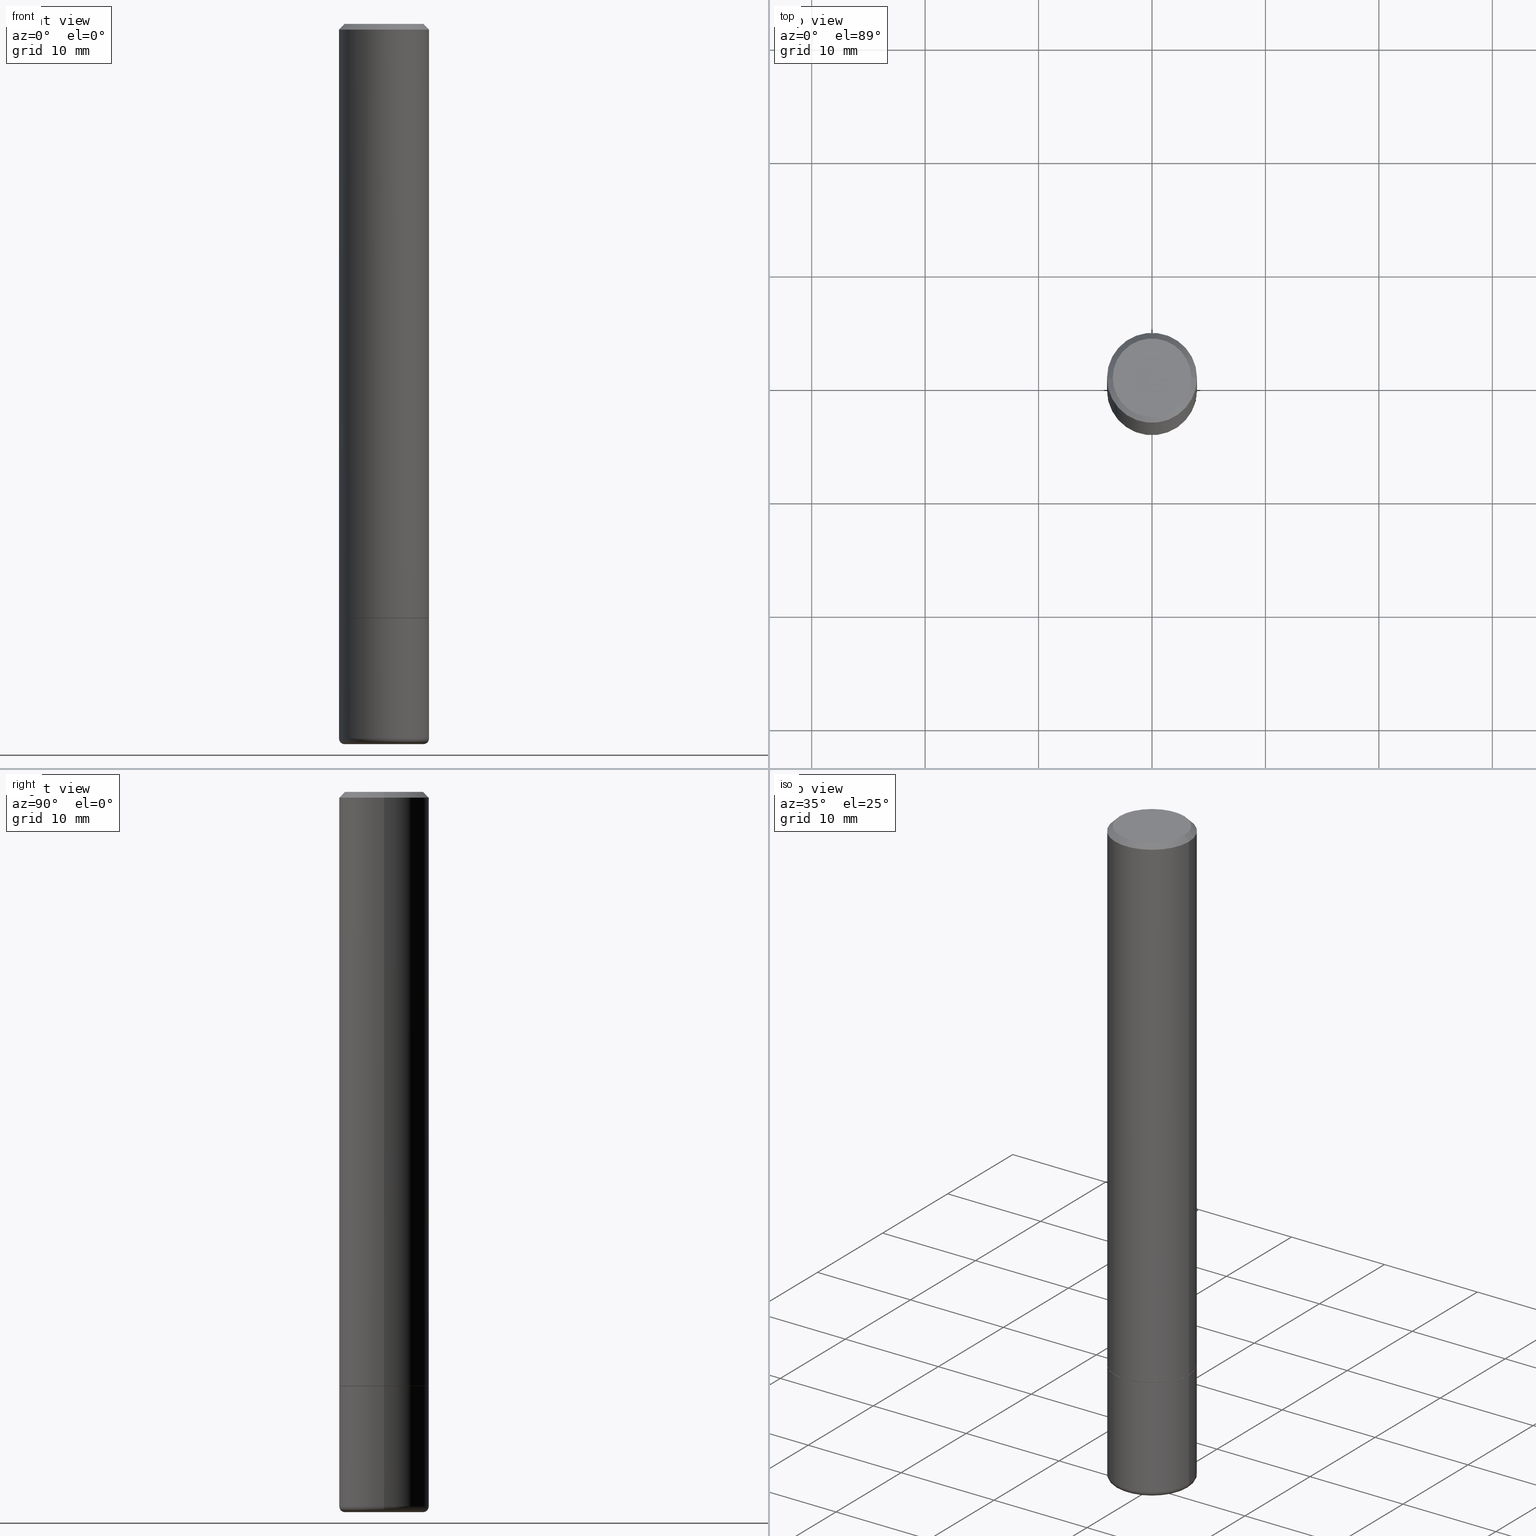
[diagram: canonical four-view strip — front | top / right | iso, engineering-drawing reading convention]
A machine part, canonical four-view strip (front | top / right | iso — engineering-drawing reading convention). The complete STEP part file that produces these views, byte-faithful:
ISO-10303-21;
HEADER;
FILE_DESCRIPTION (( 'STEP AP203' ),
    '1' );
FILE_NAME ('33456.STEP',
    '2022-11-02T20:12:32',
    ( '' ),
    ( '' ),
    'SwSTEP 2.0',
    'SolidWorks 2022',
    '' );
FILE_SCHEMA (( 'CONFIG_CONTROL_DESIGN' ));
ENDSEC;

DATA;
#1 = CC_DESIGN_APPROVAL ( #394, ( #26 ) ) ;
#2 = CARTESIAN_POINT ( 'NONE',  ( 6.113316349644044208E-29, -8.728195550579831030E-15, -2.499854561293974875 ) ) ;
#3 = PERSON ( 'UNSPECIFIED', 'UNSPECIFIED', 'UNSPECIFIED', ('UNSPECIFIED'), ('UNSPECIFIED'), ('UNSPECIFIED') ) ;
#4 = DIRECTION ( 'NONE',  ( -1.000000000000000000, 6.982962677686265922E-15, -4.876176775795935793E-29 ) ) ;
#5 = ORIENTED_EDGE ( 'NONE', *, *, #136, .F. ) ;
#6 = AXIS2_PLACEMENT_3D ( 'NONE', #470, #17, #397 ) ;
#7 = AXIS2_PLACEMENT_3D ( 'NONE', #485, #152, #452 ) ;
#8 = CARTESIAN_POINT ( 'NONE',  ( -0.1360754692900327800, -7.778493423706921372E-15, -2.500000000000000000 ) ) ;
#9 = CARTESIAN_POINT ( 'NONE',  ( 6.113316349644044208E-29, -8.728195550579831030E-15, -2.499854561293974875 ) ) ;
#10 = ORIENTED_EDGE ( 'NONE', *, *, #289, .T. ) ;
#11 = VERTEX_POINT ( 'NONE', #47 ) ;
#12 = CLOSED_SHELL ( 'NONE', ( #269, #220, #478, #80, #106, #218, #175, #366 ) ) ;
#13 = AXIS2_PLACEMENT_3D ( 'NONE', #182, #230, #343 ) ;
#14 = ORIENTED_EDGE ( 'NONE', *, *, #34, .T. ) ;
#15 = DIRECTION ( 'NONE',  ( -2.445468806185136597E-29, 3.491481338843145583E-15, 1.000000000000000000 ) ) ;
#16 = DIRECTION ( 'NONE',  ( -2.445468806185136597E-29, 3.491481338843145583E-15, 1.000000000000000000 ) ) ;
#17 = DIRECTION ( 'NONE',  ( -2.445468806185136597E-29, 3.491481338843145583E-15, 1.000000000000000000 ) ) ;
#18 =( NAMED_UNIT ( * ) PLANE_ANGLE_UNIT ( ) SI_UNIT ( $, .RADIAN. ) );
#19 = CIRCLE ( 'NONE', #115, 0.1562499999999996392 ) ;
#20 = CC_DESIGN_PERSON_AND_ORGANIZATION_ASSIGNMENT ( #417, #266, ( #486 ) ) ;
#21 = AXIS2_PLACEMENT_3D ( 'NONE', #75, #71, #375 ) ;
#22 = DIRECTION ( 'NONE',  ( -2.445468806185136877E-29, 3.491481338843145188E-15, 1.000000000000000000 ) ) ;
#23 = DIRECTION ( 'NONE',  ( 0.000000000000000000, 0.000000000000000000, 1.000000000000000000 ) ) ;
#24 = CARTESIAN_POINT ( 'NONE',  ( -0.1360754692900327800, -7.655241169760067080E-15, -2.500000000000000000 ) ) ;
#25 = FACE_OUTER_BOUND ( 'NONE', #206, .T. ) ;
#26 = PRODUCT_DEFINITION ( 'UNKNOWN', '', #395, #27 ) ;
#27 = DESIGN_CONTEXT ( 'detailed design', #337, 'design' ) ;
#28 = CARTESIAN_POINT ( 'NONE',  ( -0.1552499999999996383, -6.092764209748213799E-15, -2.062500000000000000 ) ) ;
#29 = VECTOR ( 'NONE', #43, 39.37007874015748143 ) ;
#30 = AXIS2_PLACEMENT_3D ( 'NONE', #418, #345, #4 ) ;
#31 = ORIENTED_EDGE ( 'NONE', *, *, #312, .F. ) ;
#32 = CALENDAR_DATE ( 2022, 2, 11 ) ;
#33 = CARTESIAN_POINT ( 'NONE',  ( 4.890937612370293302E-31, -6.982962677686318726E-17, -0.02000000000000008021 ) ) ;
#34 = EDGE_CURVE ( 'NONE', #76, #135, #201, .T. ) ;
#35 = PERSON_AND_ORGANIZATION ( #3, #409 ) ;
#36 = DIRECTION ( 'NONE',  ( -2.445468806185136597E-29, 3.491481338843145583E-15, 1.000000000000000000 ) ) ;
#37 = EDGE_LOOP ( 'NONE', ( #483, #421, #117, #450 ) ) ;
#38 = COORDINATED_UNIVERSAL_TIME_OFFSET ( 5, 0, .BEHIND. ) ;
#39 = CARTESIAN_POINT ( 'NONE',  ( -0.1552499999999996383, -6.098062664096435412E-15, -2.062500000000000000 ) ) ;
#40 = AXIS2_PLACEMENT_3D ( 'NONE', #50, #204, #166 ) ;
#41 = COORDINATED_UNIVERSAL_TIME_OFFSET ( 5, 0, .BEHIND. ) ;
#42 = DATE_AND_TIME ( #460, #202 ) ;
#43 = DIRECTION ( 'NONE',  ( -0.9993908270190957621, 6.856857904024562781E-15, -0.03489949670249930386 ) ) ;
#44 = ORIENTED_EDGE ( 'NONE', *, *, #258, .F. ) ;
#45 = EDGE_CURVE ( 'NONE', #205, #54, #466, .T. ) ;
#46 = LINE ( 'NONE', #279, #29 ) ;
#47 = CARTESIAN_POINT ( 'NONE',  ( 0.1562499999999996392, -8.292268179752465385E-15, -2.062500000000000000 ) ) ;
#48 = CIRCLE ( 'NONE', #356, 0.1552499999999996383 ) ;
#49 = CC_DESIGN_APPROVAL ( #145, ( #250 ) ) ;
#50 = CARTESIAN_POINT ( 'NONE',  ( 6.113316349644044208E-29, -8.728195550579831030E-15, -2.499854561293974875 ) ) ;
#51 = EDGE_LOOP ( 'NONE', ( #86, #406, #415 ) ) ;
#52 = CC_DESIGN_PERSON_AND_ORGANIZATION_ASSIGNMENT ( #193, #448, ( #26 ) ) ;
#53 = DIRECTION ( 'NONE',  ( 0.7071067811865232589, -2.468850131082003836E-15, 0.7071067811865715536 ) ) ;
#54 = VERTEX_POINT ( 'NONE', #130 ) ;
#55 = ORIENTED_EDGE ( 'NONE', *, *, #203, .F. ) ;
#56 = CARTESIAN_POINT ( 'NONE',  ( 6.064764501658314522E-29, -8.658876379229219650E-15, -2.480000761538716958 ) ) ;
#57 = CLOSED_SHELL ( 'NONE', ( #298, #481, #358, #226, #385, #208, #277, #293, #425 ) ) ;
#58 = AXIS2_PLACEMENT_3D ( 'NONE', #412, #245, #169 ) ;
#59 = CARTESIAN_POINT ( 'NONE',  ( 0.1562499999999994726, -1.141782438928661161E-15, -0.02000000000000008021 ) ) ;
#60 = CARTESIAN_POINT ( 'NONE',  ( 5.041333943950659188E-29, -7.197688780025145571E-15, -2.061500000000000110 ) ) ;
#61 = DIRECTION ( 'NONE',  ( 0.9993908270190957621, -6.978169709227536755E-15, -0.03489949670249930386 ) ) ;
#62 = DATE_AND_TIME ( #102, #126 ) ;
#63 = ORIENTED_EDGE ( 'NONE', *, *, #490, .F. ) ;
#64 = CIRCLE ( 'NONE', #438, 0.1562499999999994726 ) ;
#65 = DIRECTION ( 'NONE',  ( -2.445468806185136877E-29, 3.491481338843145188E-15, 1.000000000000000000 ) ) ;
#66 = EDGE_CURVE ( 'NONE', #464, #308, #472, .T. ) ;
#67 = LINE ( 'NONE', #59, #107 ) ;
#68 = DIRECTION ( 'NONE',  ( -2.445468806185136597E-29, 3.491481338843145583E-15, 1.000000000000000000 ) ) ;
#69 = DATE_AND_TIME ( #32, #283 ) ;
#70 = VECTOR ( 'NONE', #61, 39.37007874015748143 ) ;
#71 = DIRECTION ( 'NONE',  ( -2.445468806185136597E-29, 3.491481338843145583E-15, 1.000000000000000000 ) ) ;
#72 = CIRCLE ( 'NONE', #21, 0.1360754692900327800 ) ;
#73 = EDGE_LOOP ( 'NONE', ( #128, #10, #165, #348 ) ) ;
#74 = PRODUCT_RELATED_PRODUCT_CATEGORY ( 'detail', '', ( #486 ) ) ;
#75 = CARTESIAN_POINT ( 'NONE',  ( 6.113672015462842613E-29, -8.728703347107864943E-15, -2.500000000000000000 ) ) ;
#76 = VERTEX_POINT ( 'NONE', #98 ) ;
#77 = CARTESIAN_POINT ( 'NONE',  ( -0.1562499999999996392, -6.819805295671450729E-15, -2.062500000000000000 ) ) ;
#78 = EDGE_LOOP ( 'NONE', ( #284, #461, #14, #235 ) ) ;
#79 = PERSON_AND_ORGANIZATION ( #3, #409 ) ;
#80 = ADVANCED_FACE ( 'NONE', ( #213 ), #349, .T. ) ;
#81 = DIRECTION ( 'NONE',  ( 1.000000000000000000, -6.982962677686267499E-15, 4.876176775795936914E-29 ) ) ;
#82 = CIRCLE ( 'NONE', #209, 0.1562499999999995282 ) ;
#83 = CARTESIAN_POINT ( 'NONE',  ( 0.1552499999999996383, -8.285285217074779370E-15, -2.062500000000000000 ) ) ;
#84 = EDGE_CURVE ( 'NONE', #183, #317, #363, .T. ) ;
#85 = DIRECTION ( 'NONE',  ( -2.445468806185136597E-29, 3.491481338843145583E-15, 1.000000000000000000 ) ) ;
#86 = ORIENTED_EDGE ( 'NONE', *, *, #131, .F. ) ;
#87 = LINE ( 'NONE', #83, #316 ) ;
#88 = ORIENTED_EDGE ( 'NONE', *, *, #45, .T. ) ;
#89 = AXIS2_PLACEMENT_3D ( 'NONE', #108, #16, #401 ) ;
#90 = AXIS2_PLACEMENT_3D ( 'NONE', #304, #68, #380 ) ;
#91 = CC_DESIGN_PERSON_AND_ORGANIZATION_ASSIGNMENT ( #335, #364, ( #395 ) ) ;
#92 = EDGE_LOOP ( 'NONE', ( #446, #162, #132 ) ) ;
#93 = DIRECTION ( 'NONE',  ( -2.445468806185136597E-29, 3.491481338843145583E-15, 1.000000000000000000 ) ) ;
#94 =( NAMED_UNIT ( * ) SI_UNIT ( $, .STERADIAN. ) SOLID_ANGLE_UNIT ( ) );
#95 = VERTEX_POINT ( 'NONE', #253 ) ;
#96 = LINE ( 'NONE', #173, #70 ) ;
#97 = AXIS2_PLACEMENT_3D ( 'NONE', #210, #434, #359 ) ;
#98 = CARTESIAN_POINT ( 'NONE',  ( -0.1194098442900327905, -7.894361064554203421E-15, -2.499854561293974875 ) ) ;
#99 = APPLICATION_PROTOCOL_DEFINITION ( 'international standard', 'config_control_design', 1994, #268 ) ;
#100 = EDGE_LOOP ( 'NONE', ( #244, #353, #5, #44 ) ) ;
#101 = CARTESIAN_POINT ( 'NONE',  ( 4.890937612370293302E-31, -6.982962677686318726E-17, -0.02000000000000008021 ) ) ;
#102 = CALENDAR_DATE ( 2022, 2, 11 ) ;
#103 = FACE_OUTER_BOUND ( 'NONE', #351, .T. ) ;
#104 = EDGE_CURVE ( 'NONE', #54, #95, #454, .T. ) ;
#105 = CYLINDRICAL_SURFACE ( 'NONE', #138, 0.1562499999999995282 ) ;
#106 = ADVANCED_FACE ( 'NONE', ( #25 ), #255, .T. ) ;
#107 = VECTOR ( 'NONE', #328, 39.37007874015748143 ) ;
#108 = CARTESIAN_POINT ( 'NONE',  ( 0.000000000000000000, 0.000000000000000000, 0.000000000000000000 ) ) ;
#109 = DIRECTION ( 'NONE',  ( 1.000000000000000000, -6.982962677686266711E-15, 0.000000000000000000 ) ) ;
#110 = FACE_OUTER_BOUND ( 'NONE', #73, .T. ) ;
#111 = PERSON_AND_ORGANIZATION_ROLE ( 'creator' ) ;
#112 = CIRCLE ( 'NONE', #174, 0.1562499999999996392 ) ;
#113 = DIRECTION ( 'NONE',  ( -2.445468806185136597E-29, 3.491481338843145583E-15, 1.000000000000000000 ) ) ;
#114 = FACE_OUTER_BOUND ( 'NONE', #242, .T. ) ;
#115 = AXIS2_PLACEMENT_3D ( 'NONE', #60, #393, #361 ) ;
#116 = CC_DESIGN_SECURITY_CLASSIFICATION ( #250, ( #395 ) ) ;
#117 = ORIENTED_EDGE ( 'NONE', *, *, #258, .T. ) ;
#118 = EDGE_CURVE ( 'NONE', #95, #183, #221, .T. ) ;
#119 = DIRECTION ( 'NONE',  ( 1.000000000000000000, -6.982962677686268288E-15, 0.000000000000000000 ) ) ;
#120 = ORIENTED_EDGE ( 'NONE', *, *, #344, .T. ) ;
#121 = DIRECTION ( 'NONE',  ( -2.445468806185136597E-29, 3.491481338843145583E-15, 1.000000000000000000 ) ) ;
#122 = EDGE_CURVE ( 'NONE', #334, #233, #431, .T. ) ;
#123 = AXIS2_PLACEMENT_3D ( 'NONE', #428, #93, #207 ) ;
#124 = ORIENTED_EDGE ( 'NONE', *, *, #136, .T. ) ;
#125 = AXIS2_PLACEMENT_3D ( 'NONE', #56, #15, #471 ) ;
#126 = LOCAL_TIME ( 16, 12, 32.00000000000000000, #41 ) ;
#127 = CARTESIAN_POINT ( 'NONE',  ( 6.064764501658314522E-29, -8.658876379229219650E-15, -2.480000761538716958 ) ) ;
#128 = ORIENTED_EDGE ( 'NONE', *, *, #66, .T. ) ;
#129 = SHAPE_DEFINITION_REPRESENTATION ( #287, #437 ) ;
#130 = CARTESIAN_POINT ( 'NONE',  ( 0.1360754692900327800, -9.678913270508806936E-15, -2.500000000000000000 ) ) ;
#131 = EDGE_CURVE ( 'NONE', #427, #205, #96, .T. ) ;
#132 = ORIENTED_EDGE ( 'NONE', *, *, #451, .F. ) ;
#133 = CIRCLE ( 'NONE', #215, 0.1362499999999993994 ) ;
#134 = CARTESIAN_POINT ( 'NONE',  ( 0.1360754692900327800, -9.662248831717955036E-15, -2.500000000000000000 ) ) ;
#135 = VERTEX_POINT ( 'NONE', #24 ) ;
#136 = EDGE_CURVE ( 'NONE', #11, #317, #112, .T. ) ;
#137 = DIRECTION ( 'NONE',  ( -6.982962677686266711E-15, -1.000000000000000000, 3.491481338843145583E-15 ) ) ;
#138 = AXIS2_PLACEMENT_3D ( 'NONE', #399, #216, #330 ) ;
#139 = ORIENTED_EDGE ( 'NONE', *, *, #179, .T. ) ;
#140 = CC_DESIGN_APPROVAL ( #314, ( #395 ) ) ;
#141 = CARTESIAN_POINT ( 'NONE',  ( -0.1562499999999995282, -6.819805295671450729E-15, -2.480000761538716958 ) ) ;
#142 = EDGE_LOOP ( 'NONE', ( #442, #350 ) ) ;
#143 = DIRECTION ( 'NONE',  ( -2.438088387897960049E-29, 3.491481338843145188E-15, 1.000000000000000000 ) ) ;
#144 = PERSON_AND_ORGANIZATION_ROLE ( 'classification_officer' ) ;
#145 = APPROVAL ( #347, 'UNSPECIFIED' ) ;
#146 = CARTESIAN_POINT ( 'NONE',  ( 6.113316349644044208E-29, -8.728195550579831030E-15, -2.499854561293974875 ) ) ;
#147 = CIRCLE ( 'NONE', #222, 0.1562499999999996392 ) ;
#148 = FACE_OUTER_BOUND ( 'NONE', #326, .T. ) ;
#149 = CYLINDRICAL_SURFACE ( 'NONE', #7, 0.1562499999999995837 ) ;
#150 = ORIENTED_EDGE ( 'NONE', *, *, #346, .T. ) ;
#151 = DATE_TIME_ROLE ( 'creation_date' ) ;
#152 = DIRECTION ( 'NONE',  ( -2.445468806185136597E-29, 3.491481338843145583E-15, 1.000000000000000000 ) ) ;
#153 = CARTESIAN_POINT ( 'NONE',  ( 0.000000000000000000, 0.000000000000000000, 0.000000000000000000 ) ) ;
#154 = CIRCLE ( 'NONE', #340, 0.1562499999999994726 ) ;
#155 = ORIENTED_EDGE ( 'NONE', *, *, #429, .T. ) ;
#156 = DIRECTION ( 'NONE',  ( -2.445468806185136597E-29, 3.491481338843145583E-15, 1.000000000000000000 ) ) ;
#157 = APPROVAL_DATE_TIME ( #42, #145 ) ;
#158 = CARTESIAN_POINT ( 'NONE',  ( 5.041333943950659188E-29, -7.197688780025145571E-15, -2.061500000000000110 ) ) ;
#159 = ORIENTED_EDGE ( 'NONE', *, *, #490, .T. ) ;
#160 = DIRECTION ( 'NONE',  ( -0.7071067811865471286, 2.468850131082252722E-15, -0.7071067811865479058 ) ) ;
#161 = VECTOR ( 'NONE', #441, 39.37007874015748143 ) ;
#162 = ORIENTED_EDGE ( 'NONE', *, *, #131, .T. ) ;
#163 = ORIENTED_EDGE ( 'NONE', *, *, #322, .T. ) ;
#164 = CARTESIAN_POINT ( 'NONE',  ( 6.113672015462842613E-29, -8.728703347107864943E-15, -2.500000000000000000 ) ) ;
#165 = ORIENTED_EDGE ( 'NONE', *, *, #381, .F. ) ;
#166 = DIRECTION ( 'NONE',  ( 1.000000000000000000, -6.982962677686268288E-15, 0.000000000000000000 ) ) ;
#167 = ORIENTED_EDGE ( 'NONE', *, *, #34, .F. ) ;
#168 = CONICAL_SURFACE ( 'NONE', #408, 0.1360754692900327800, 1.562069680534921678 ) ;
#169 = DIRECTION ( 'NONE',  ( -1.000000000000000000, 6.982962677686265922E-15, 0.000000000000000000 ) ) ;
#170 = ORIENTED_EDGE ( 'NONE', *, *, #398, .F. ) ;
#171 = EDGE_CURVE ( 'NONE', #321, #413, #386, .T. ) ;
#172 = DIRECTION ( 'NONE',  ( -1.000000000000000000, 6.982962677686265922E-15, 0.000000000000000000 ) ) ;
#173 = CARTESIAN_POINT ( 'NONE',  ( 0.1194098442900327905, -9.547406548245810886E-15, -2.499854561293974875 ) ) ;
#174 = AXIS2_PLACEMENT_3D ( 'NONE', #251, #246, #290 ) ;
#175 = ADVANCED_FACE ( 'NONE', ( #396 ), #292, .F. ) ;
#176 = DIRECTION ( 'NONE',  ( 1.000000000000000000, -6.982962677686265922E-15, 4.876176775795935793E-29 ) ) ;
#177 = FACE_OUTER_BOUND ( 'NONE', #228, .T. ) ;
#178 = DIRECTION ( 'NONE',  ( 2.445468806185136597E-29, -3.491481338843145583E-15, -1.000000000000000000 ) ) ;
#179 = EDGE_CURVE ( 'NONE', #459, #334, #19, .T. ) ;
#180 = AXIS2_PLACEMENT_3D ( 'NONE', #261, #186, #194 ) ;
#181 = APPROVAL_PERSON_ORGANIZATION ( #229, #314, #379 ) ;
#182 = CARTESIAN_POINT ( 'NONE',  ( -0.1362500000000001765, -7.690761901756081695E-15, -2.480000761538716958 ) ) ;
#183 = VERTEX_POINT ( 'NONE', #141 ) ;
#184 = CC_DESIGN_PERSON_AND_ORGANIZATION_ASSIGNMENT ( #372, #111, ( #395 ) ) ;
#185 = APPROVAL_STATUS ( 'not_yet_approved' ) ;
#186 = DIRECTION ( 'NONE',  ( -2.445468806185136597E-29, 3.491481338843145583E-15, 1.000000000000000000 ) ) ;
#187 = FACE_OUTER_BOUND ( 'NONE', #100, .T. ) ;
#188 = ORIENTED_EDGE ( 'NONE', *, *, #289, .F. ) ;
#189 = CALENDAR_DATE ( 2022, 2, 11 ) ;
#190 = DIRECTION ( 'NONE',  ( 2.445468806185136597E-29, -3.491481338843145583E-15, -1.000000000000000000 ) ) ;
#191 = AXIS2_PLACEMENT_3D ( 'NONE', #198, #237, #352 ) ;
#192 = CC_DESIGN_PERSON_AND_ORGANIZATION_ASSIGNMENT ( #476, #144, ( #250 ) ) ;
#193 = PERSON_AND_ORGANIZATION ( #3, #409 ) ;
#194 = DIRECTION ( 'NONE',  ( 1.000000000000000000, -6.982962677686266711E-15, 0.000000000000000000 ) ) ;
#195 = ORIENTED_EDGE ( 'NONE', *, *, #252, .T. ) ;
#196 = FACE_OUTER_BOUND ( 'NONE', #78, .T. ) ;
#197 = ORIENTED_EDGE ( 'NONE', *, *, #273, .T. ) ;
#198 = CARTESIAN_POINT ( 'NONE',  ( 6.113672015462842613E-29, -8.728703347107864943E-15, -2.500000000000000000 ) ) ;
#199 = VECTOR ( 'NONE', #324, 39.37007874015748143 ) ;
#200 = CONICAL_SURFACE ( 'NONE', #264, 0.1194098442900327905, 1.535889741755011695 ) ;
#201 = LINE ( 'NONE', #8, #199 ) ;
#202 = LOCAL_TIME ( 16, 12, 32.00000000000000000, #462 ) ;
#203 = EDGE_CURVE ( 'NONE', #321, #233, #67, .T. ) ;
#204 = DIRECTION ( 'NONE',  ( -2.445468806185136597E-29, 3.491481338843145583E-15, 1.000000000000000000 ) ) ;
#205 = VERTEX_POINT ( 'NONE', #329 ) ;
#206 = EDGE_LOOP ( 'NONE', ( #357, #139, #422, #390 ) ) ;
#207 = DIRECTION ( 'NONE',  ( 1.000000000000000000, -6.982962677686266711E-15, 0.000000000000000000 ) ) ;
#208 = ADVANCED_FACE ( 'NONE', ( #479 ), #294, .F. ) ;
#209 = AXIS2_PLACEMENT_3D ( 'NONE', #127, #85, #388 ) ;
#210 = CARTESIAN_POINT ( 'NONE',  ( 1.091087918388526900E-15, 0.1562499999999924227, -2.062500000000000888 ) ) ;
#211 = DIRECTION ( 'NONE',  ( 1.000000000000000000, -6.982962677686265133E-15, 0.000000000000000000 ) ) ;
#212 = CC_DESIGN_DATE_AND_TIME_ASSIGNMENT ( #443, #295, ( #250 ) ) ;
#213 = FACE_OUTER_BOUND ( 'NONE', #424, .T. ) ;
#214 = APPROVAL_DATE_TIME ( #62, #314 ) ;
#215 = AXIS2_PLACEMENT_3D ( 'NONE', #420, #382, #463 ) ;
#216 = DIRECTION ( 'NONE',  ( -2.445468806185136597E-29, 3.491481338843145583E-15, 1.000000000000000000 ) ) ;
#217 = CARTESIAN_POINT ( 'NONE',  ( 0.1562499999999995282, -1.091087918388475821E-15, 7.619026212181126555E-30 ) ) ;
#218 = ADVANCED_FACE ( 'NONE', ( #148 ), #249, .T. ) ;
#219 = DIRECTION ( 'NONE',  ( -1.000000000000000000, 6.982962677686269077E-15, 0.000000000000000000 ) ) ;
#220 = ADVANCED_FACE ( 'NONE', ( #177 ), #105, .T. ) ;
#221 = CIRCLE ( 'NONE', #291, 0.1562499999999995282 ) ;
#222 = AXIS2_PLACEMENT_3D ( 'NONE', #439, #373, #109 ) ;
#223 = CARTESIAN_POINT ( 'NONE',  ( 0.1562499999999996392, -8.288776698413622377E-15, -2.061500000000000110 ) ) ;
#224 = DIRECTION ( 'NONE',  ( -0.7071067811865232589, 7.493145998870265808E-15, 0.7071067811865715536 ) ) ;
#225 = ORIENTED_EDGE ( 'NONE', *, *, #451, .T. ) ;
#226 = ADVANCED_FACE ( 'NONE', ( #477 ), #200, .F. ) ;
#227 = CARTESIAN_POINT ( 'NONE',  ( 0.1562499999999994726, -1.141782438928661161E-15, -0.02000000000000008021 ) ) ;
#228 = EDGE_LOOP ( 'NONE', ( #305, #195, #487, #240 ) ) ;
#229 = PERSON_AND_ORGANIZATION ( #3, #409 ) ;
#230 = DIRECTION ( 'NONE',  ( 7.105427357601001859E-15, 1.000000000000000000, -3.491481338843145583E-15 ) ) ;
#231 = CIRCLE ( 'NONE', #332, 0.1194098442900327905 ) ;
#232 = CARTESIAN_POINT ( 'NONE',  ( -0.1362499999999993994, 9.863434782231808736E-16, -6.775751096333110456E-30 ) ) ;
#233 = VERTEX_POINT ( 'NONE', #227 ) ;
#234 = MANIFOLD_SOLID_BREP ( 'Body-Move/Copy2[1]', #57 ) ;
#235 = ORIENTED_EDGE ( 'NONE', *, *, #429, .F. ) ;
#236 = EDGE_CURVE ( 'NONE', #308, #464, #48, .T. ) ;
#237 = DIRECTION ( 'NONE',  ( 2.445468806185136597E-29, -3.491481338843145583E-15, -1.000000000000000000 ) ) ;
#238 = VECTOR ( 'NONE', #22, 39.37007874015748143 ) ;
#239 = CIRCLE ( 'NONE', #465, 0.1360754692900327800 ) ;
#240 = ORIENTED_EDGE ( 'NONE', *, *, #122, .F. ) ;
#241 =( CONVERSION_BASED_UNIT ( 'INCH', #354 ) LENGTH_UNIT ( ) NAMED_UNIT ( #468 ) );
#242 = EDGE_LOOP ( 'NONE', ( #384, #282, #120, #63 ) ) ;
#243 = FACE_OUTER_BOUND ( 'NONE', #51, .T. ) ;
#244 = ORIENTED_EDGE ( 'NONE', *, *, #118, .T. ) ;
#245 = DIRECTION ( 'NONE',  ( 2.445468806185136597E-29, -3.491481338843145583E-15, -1.000000000000000000 ) ) ;
#246 = DIRECTION ( 'NONE',  ( -2.445468806185136597E-29, 3.491481338843145583E-15, 1.000000000000000000 ) ) ;
#247 = AXIS2_PLACEMENT_3D ( 'NONE', #367, #137, #475 ) ;
#248 = VECTOR ( 'NONE', #65, 39.37007874015748143 ) ;
#249 = CONICAL_SURFACE ( 'NONE', #370, 0.1552499999999996383, 0.7853981633974141952 ) ;
#250 = SECURITY_CLASSIFICATION ( '', '', #484 ) ;
#251 = CARTESIAN_POINT ( 'NONE',  ( 5.043779412756844791E-29, -7.201180261363988578E-15, -2.062500000000000000 ) ) ;
#252 = EDGE_CURVE ( 'NONE', #459, #453, #333, .T. ) ;
#253 = CARTESIAN_POINT ( 'NONE',  ( 0.1562499999999995282, -9.749964297617694879E-15, -2.480000761538716958 ) ) ;
#254 = COORDINATED_UNIVERSAL_TIME_OFFSET ( 5, 0, .BEHIND. ) ;
#255 = CYLINDRICAL_SURFACE ( 'NONE', #6, 0.1562499999999995282 ) ;
#256 = CIRCLE ( 'NONE', #40, 0.1194098442900327905 ) ;
#257 = VECTOR ( 'NONE', #160, 39.37007874015748143 ) ;
#258 = EDGE_CURVE ( 'NONE', #95, #11, #369, .T. ) ;
#259 = DIRECTION ( 'NONE',  ( -1.000000000000000000, 6.982962677686268288E-15, 0.000000000000000000 ) ) ;
#260 = CC_DESIGN_DATE_AND_TIME_ASSIGNMENT ( #69, #151, ( #26 ) ) ;
#261 = CARTESIAN_POINT ( 'NONE',  ( 5.043779412756844791E-29, -7.201180261363988578E-15, -2.062500000000000000 ) ) ;
#262 = APPROVAL_ROLE ( '' ) ;
#263 = CARTESIAN_POINT ( 'NONE',  ( 6.113672015462842613E-29, -8.728703347107864943E-15, -2.500000000000000000 ) ) ;
#264 = AXIS2_PLACEMENT_3D ( 'NONE', #146, #436, #259 ) ;
#265 =( GEOMETRIC_REPRESENTATION_CONTEXT ( 3 ) GLOBAL_UNCERTAINTY_ASSIGNED_CONTEXT ( ( #402 ) ) GLOBAL_UNIT_ASSIGNED_CONTEXT ( ( #241, #18, #94 ) ) REPRESENTATION_CONTEXT ( 'NONE', 'WORKASPACE' ) );
#266 = PERSON_AND_ORGANIZATION_ROLE ( 'design_owner' ) ;
#267 = DIRECTION ( 'NONE',  ( 1.000000000000000000, -6.982962677686265133E-15, 0.000000000000000000 ) ) ;
#268 = APPLICATION_CONTEXT ( 'configuration controlled 3d designs of mechanical parts and assemblies' ) ;
#269 = ADVANCED_FACE ( 'NONE', ( #110 ), #447, .T. ) ;
#270 = CARTESIAN_POINT ( 'NONE',  ( 0.000000000000000000, 0.000000000000000000, 0.000000000000000000 ) ) ;
#271 = CARTESIAN_POINT ( 'NONE',  ( 0.1362499999999993994, -1.038262645562514180E-15, 6.957025900226667049E-30 ) ) ;
#272 = PLANE ( 'NONE',  #30 ) ;
#273 = EDGE_CURVE ( 'NONE', #317, #11, #147, .T. ) ;
#274 = CONICAL_SURFACE ( 'NONE', #58, 0.1562499999999994726, 0.7853981633974477239 ) ;
#275 = ORIENTED_EDGE ( 'NONE', *, *, #440, .F. ) ;
#276 = DIRECTION ( 'NONE',  ( 2.445468806185136597E-29, -3.491481338843145583E-15, -1.000000000000000000 ) ) ;
#277 = ADVANCED_FACE ( 'NONE', ( #489 ), #149, .T. ) ;
#278 = ORIENTED_EDGE ( 'NONE', *, *, #236, .T. ) ;
#279 = CARTESIAN_POINT ( 'NONE',  ( -0.1194098442900327905, -7.894361064554203421E-15, -2.499854561293974875 ) ) ;
#280 = ORIENTED_EDGE ( 'NONE', *, *, #179, .F. ) ;
#281 = AXIS2_PLACEMENT_3D ( 'NONE', #158, #315, #323 ) ;
#282 = ORIENTED_EDGE ( 'NONE', *, *, #203, .T. ) ;
#283 = LOCAL_TIME ( 16, 12, 32.00000000000000000, #254 ) ;
#284 = ORIENTED_EDGE ( 'NONE', *, *, #45, .F. ) ;
#285 = CARTESIAN_POINT ( 'NONE',  ( -0.1562499999999994726, 1.021258291611612128E-15, -0.02000000000000008021 ) ) ;
#286 = EDGE_LOOP ( 'NONE', ( #124, #197 ) ) ;
#287 = PRODUCT_DEFINITION_SHAPE ( 'NONE', 'NONE',  #26 ) ;
#288 = ORIENTED_EDGE ( 'NONE', *, *, #322, .F. ) ;
#289 = EDGE_CURVE ( 'NONE', #308, #459, #300, .T. ) ;
#290 = DIRECTION ( 'NONE',  ( 1.000000000000000000, -6.982962677686266711E-15, 0.000000000000000000 ) ) ;
#291 = AXIS2_PLACEMENT_3D ( 'NONE', #368, #474, #211 ) ;
#292 = PLANE ( 'NONE',  #445 ) ;
#293 = ADVANCED_FACE ( 'NONE', ( #404 ), #377, .T. ) ;
#294 = PLANE ( 'NONE',  #97 ) ;
#295 = DATE_TIME_ROLE ( 'classification_date' ) ;
#296 = DIRECTION ( 'NONE',  ( 1.000000000000000000, -6.982962677686266711E-15, 0.000000000000000000 ) ) ;
#297 = AXIS2_PLACEMENT_3D ( 'NONE', #153, #121, #81 ) ;
#298 = ADVANCED_FACE ( 'NONE', ( #405 ), #168, .F. ) ;
#299 = CARTESIAN_POINT ( 'NONE',  ( 5.043779412756844791E-29, -7.201180261363988578E-15, -2.062500000000000000 ) ) ;
#300 = LINE ( 'NONE', #39, #456 ) ;
#301 = CARTESIAN_POINT ( 'NONE',  ( 0.1552499999999996383, -8.285285217074779370E-15, -2.062500000000000000 ) ) ;
#302 = EDGE_LOOP ( 'NONE', ( #225, #88, #31, #167 ) ) ;
#303 = CALENDAR_DATE ( 2022, 2, 11 ) ;
#304 = CARTESIAN_POINT ( 'NONE',  ( 6.064764501658314522E-29, -8.658876379229219650E-15, -2.480000761538716958 ) ) ;
#305 = ORIENTED_EDGE ( 'NONE', *, *, #381, .T. ) ;
#306 = APPROVAL_DATE_TIME ( #342, #394 ) ;
#307 = DIRECTION ( 'NONE',  ( -2.445468806185136597E-29, 3.491481338843145583E-15, 1.000000000000000000 ) ) ;
#308 = VERTEX_POINT ( 'NONE', #28 ) ;
#309 = CARTESIAN_POINT ( 'NONE',  ( -0.1562499999999994726, 1.021258291611612128E-15, -0.02000000000000008021 ) ) ;
#310 = MECHANICAL_CONTEXT ( 'NONE', #268, 'mechanical' ) ;
#311 = FACE_OUTER_BOUND ( 'NONE', #142, .T. ) ;
#312 = EDGE_CURVE ( 'NONE', #135, #54, #72, .T. ) ;
#313 = ORIENTED_EDGE ( 'NONE', *, *, #66, .F. ) ;
#314 = APPROVAL ( #185, 'UNSPECIFIED' ) ;
#315 = DIRECTION ( 'NONE',  ( -2.445468806185136597E-29, 3.491481338843145583E-15, 1.000000000000000000 ) ) ;
#316 = VECTOR ( 'NONE', #53, 39.37007874015748854 ) ;
#317 = VERTEX_POINT ( 'NONE', #77 ) ;
#318 = DIRECTION ( 'NONE',  ( 0.9999619230641711987, -6.890705306874853727E-15, -0.008726535498377227182 ) ) ;
#319 = APPROVAL_ROLE ( '' ) ;
#320 = DIRECTION ( 'NONE',  ( 1.000000000000000000, -6.982962677686261977E-15, 0.000000000000000000 ) ) ;
#321 = VERTEX_POINT ( 'NONE', #271 ) ;
#322 = EDGE_CURVE ( 'NONE', #135, #183, #492, .T. ) ;
#323 = DIRECTION ( 'NONE',  ( 1.000000000000000000, -6.982962677686266711E-15, 0.000000000000000000 ) ) ;
#324 = DIRECTION ( 'NONE',  ( -0.9999619230641711987, 6.952228252019158991E-15, -0.008726535498377227182 ) ) ;
#325 = ORIENTED_EDGE ( 'NONE', *, *, #104, .F. ) ;
#326 = EDGE_LOOP ( 'NONE', ( #188, #278, #469, #280 ) ) ;
#327 = CARTESIAN_POINT ( 'NONE',  ( 5.043779412756844791E-29, -7.201180261363988578E-15, -2.062500000000000000 ) ) ;
#328 = DIRECTION ( 'NONE',  ( 0.7071067811865471286, -7.319954787623254468E-15, -0.7071067811865479058 ) ) ;
#329 = CARTESIAN_POINT ( 'NONE',  ( 0.1194098442900327905, -9.547406548245810886E-15, -2.499854561293974875 ) ) ;
#330 = DIRECTION ( 'NONE',  ( 1.000000000000000000, -6.982962677686266711E-15, 4.876176775795935793E-29 ) ) ;
#331 = CARTESIAN_POINT ( 'NONE',  ( -0.1562499999999995837, 1.110223024625153582E-15, -7.685836078523270140E-30 ) ) ;
#332 = AXIS2_PLACEMENT_3D ( 'NONE', #2, #307, #119 ) ;
#333 = LINE ( 'NONE', #411, #161 ) ;
#334 = VERTEX_POINT ( 'NONE', #223 ) ;
#335 = PERSON_AND_ORGANIZATION ( #3, #409 ) ;
#336 = DIRECTION ( 'NONE',  ( 1.000000000000000000, -6.982962677686265133E-15, 0.000000000000000000 ) ) ;
#337 = APPLICATION_CONTEXT ( 'configuration controlled 3d designs of mechanical parts and assemblies' ) ;
#338 = CYLINDRICAL_SURFACE ( 'NONE', #297, 0.1562499999999995837 ) ;
#339 = EDGE_LOOP ( 'NONE', ( #313, #389 ) ) ;
#340 = AXIS2_PLACEMENT_3D ( 'NONE', #33, #36, #336 ) ;
#341 = AXIS2_PLACEMENT_3D ( 'NONE', #270, #23, #374 ) ;
#342 = DATE_AND_TIME ( #189, #371 ) ;
#343 = DIRECTION ( 'NONE',  ( -1.000000000000000000, 7.105427357601008170E-15, 0.000000000000000000 ) ) ;
#344 = EDGE_CURVE ( 'NONE', #233, #453, #154, .T. ) ;
#345 = DIRECTION ( 'NONE',  ( 2.438088387897960049E-29, -3.491481338843145188E-15, -1.000000000000000000 ) ) ;
#346 = EDGE_CURVE ( 'NONE', #453, #233, #64, .T. ) ;
#347 = APPROVAL_STATUS ( 'not_yet_approved' ) ;
#348 = ORIENTED_EDGE ( 'NONE', *, *, #407, .F. ) ;
#349 = CONICAL_SURFACE ( 'NONE', #455, 0.1562499999999994726, 0.7853981633974477239 ) ;
#350 = ORIENTED_EDGE ( 'NONE', *, *, #171, .T. ) ;
#351 = EDGE_LOOP ( 'NONE', ( #155, #163, #383, #325 ) ) ;
#352 = DIRECTION ( 'NONE',  ( -1.000000000000000000, 6.982962677686269077E-15, 0.000000000000000000 ) ) ;
#353 = ORIENTED_EDGE ( 'NONE', *, *, #84, .T. ) ;
#354 = LENGTH_MEASURE_WITH_UNIT ( LENGTH_MEASURE( 0.02539999999999999897 ), #362 );
#355 = VECTOR ( 'NONE', #318, 39.37007874015748143 ) ;
#356 = AXIS2_PLACEMENT_3D ( 'NONE', #376, #156, #449 ) ;
#357 = ORIENTED_EDGE ( 'NONE', *, *, #252, .F. ) ;
#358 = ADVANCED_FACE ( 'NONE', ( #187 ), #338, .T. ) ;
#359 = DIRECTION ( 'NONE',  ( -1.000000000000000000, 6.982962677686265922E-15, -4.876176775795935793E-29 ) ) ;
#360 = EDGE_CURVE ( 'NONE', #205, #76, #231, .T. ) ;
#361 = DIRECTION ( 'NONE',  ( 1.000000000000000000, -6.982962677686266711E-15, 0.000000000000000000 ) ) ;
#362 =( LENGTH_UNIT ( ) NAMED_UNIT ( * ) SI_UNIT ( $, .METRE. ) );
#363 = LINE ( 'NONE', #331, #248 ) ;
#364 = PERSON_AND_ORGANIZATION_ROLE ( 'design_supplier' ) ;
#365 = CONICAL_SURFACE ( 'NONE', #426, 0.1194098442900327905, 1.535889741755011695 ) ;
#366 = ADVANCED_FACE ( 'NONE', ( #311 ), #272, .F. ) ;
#367 = CARTESIAN_POINT ( 'NONE',  ( 0.1362500000000001765, -9.610305044063974593E-15, -2.480000761538716958 ) ) ;
#368 = CARTESIAN_POINT ( 'NONE',  ( 6.064764501658314522E-29, -8.658876379229219650E-15, -2.480000761538716958 ) ) ;
#369 = LINE ( 'NONE', #414, #473 ) ;
#370 = AXIS2_PLACEMENT_3D ( 'NONE', #327, #432, #296 ) ;
#371 = LOCAL_TIME ( 16, 12, 32.00000000000000000, #38 ) ;
#372 = PERSON_AND_ORGANIZATION ( #3, #409 ) ;
#373 = DIRECTION ( 'NONE',  ( -2.445468806185136597E-29, 3.491481338843145583E-15, 1.000000000000000000 ) ) ;
#374 = DIRECTION ( 'NONE',  ( 1.000000000000000000, 0.000000000000000000, 0.000000000000000000 ) ) ;
#375 = DIRECTION ( 'NONE',  ( 1.000000000000000000, -6.982962677686261977E-15, 0.000000000000000000 ) ) ;
#376 = CARTESIAN_POINT ( 'NONE',  ( 5.043779412756844791E-29, -7.201180261363988578E-15, -2.062500000000000000 ) ) ;
#377 = TOROIDAL_SURFACE ( 'NONE', #90, 0.1362500000000001765, 0.01999999999999961531 ) ;
#378 = LOCAL_TIME ( 16, 12, 32.00000000000000000, #410 ) ;
#379 = APPROVAL_ROLE ( '' ) ;
#380 = DIRECTION ( 'NONE',  ( 1.000000000000000000, -6.982962677686265922E-15, 4.883557194083112340E-29 ) ) ;
#381 = EDGE_CURVE ( 'NONE', #334, #459, #387, .T. ) ;
#382 = DIRECTION ( 'NONE',  ( -2.445468806185136597E-29, 3.491481338843145583E-15, 1.000000000000000000 ) ) ;
#383 = ORIENTED_EDGE ( 'NONE', *, *, #118, .F. ) ;
#384 = ORIENTED_EDGE ( 'NONE', *, *, #171, .F. ) ;
#385 = ADVANCED_FACE ( 'NONE', ( #243 ), #365, .F. ) ;
#386 = CIRCLE ( 'NONE', #89, 0.1362499999999993994 ) ;
#387 = CIRCLE ( 'NONE', #281, 0.1562499999999996392 ) ;
#388 = DIRECTION ( 'NONE',  ( 1.000000000000000000, -6.982962677686265133E-15, 0.000000000000000000 ) ) ;
#389 = ORIENTED_EDGE ( 'NONE', *, *, #236, .F. ) ;
#390 = ORIENTED_EDGE ( 'NONE', *, *, #346, .F. ) ;
#391 = DIRECTION ( 'NONE',  ( -1.000000000000000000, 6.982962677686268288E-15, 0.000000000000000000 ) ) ;
#392 = ORIENTED_EDGE ( 'NONE', *, *, #104, .T. ) ;
#393 = DIRECTION ( 'NONE',  ( -2.445468806185136597E-29, 3.491481338843145583E-15, 1.000000000000000000 ) ) ;
#394 = APPROVAL ( #433, 'UNSPECIFIED' ) ;
#395 = PRODUCT_DEFINITION_FORMATION_WITH_SPECIFIED_SOURCE ( 'ANY', '', #486, .NOT_KNOWN. ) ;
#396 = FACE_OUTER_BOUND ( 'NONE', #339, .T. ) ;
#397 = DIRECTION ( 'NONE',  ( 1.000000000000000000, -6.982962677686266711E-15, 4.876176775795935793E-29 ) ) ;
#398 = EDGE_CURVE ( 'NONE', #413, #321, #133, .T. ) ;
#399 = CARTESIAN_POINT ( 'NONE',  ( 0.000000000000000000, 0.000000000000000000, 0.000000000000000000 ) ) ;
#400 = CONICAL_SURFACE ( 'NONE', #191, 0.1360754692900327800, 1.562069680534921678 ) ;
#401 = DIRECTION ( 'NONE',  ( 1.000000000000000000, -6.982962677686266711E-15, 4.876176775795935793E-29 ) ) ;
#402 = UNCERTAINTY_MEASURE_WITH_UNIT (LENGTH_MEASURE( 1.000000000000000082E-05 ), #241, 'distance_accuracy_value', 'NONE');
#403 = MANIFOLD_SOLID_BREP ( 'Body-Move/Copy2[2]', #12 ) ;
#404 = FACE_OUTER_BOUND ( 'NONE', #491, .T. ) ;
#405 = FACE_OUTER_BOUND ( 'NONE', #302, .T. ) ;
#406 = ORIENTED_EDGE ( 'NONE', *, *, #416, .T. ) ;
#407 = EDGE_CURVE ( 'NONE', #464, #334, #87, .T. ) ;
#408 = AXIS2_PLACEMENT_3D ( 'NONE', #263, #190, #219 ) ;
#409 = ORGANIZATION ( 'UNSPECIFIED', 'UNSPECIFIED', '' ) ;
#410 = COORDINATED_UNIVERSAL_TIME_OFFSET ( 5, 0, .BEHIND. ) ;
#411 = CARTESIAN_POINT ( 'NONE',  ( -0.1562499999999995282, 1.110223024625153188E-15, -7.685836078523267338E-30 ) ) ;
#412 = CARTESIAN_POINT ( 'NONE',  ( 4.890937612370293302E-31, -6.982962677686318726E-17, -0.02000000000000008021 ) ) ;
#413 = VERTEX_POINT ( 'NONE', #232 ) ;
#414 = CARTESIAN_POINT ( 'NONE',  ( 0.1562499999999995837, -1.091087918388476413E-15, 7.619026212181130759E-30 ) ) ;
#415 = ORIENTED_EDGE ( 'NONE', *, *, #360, .F. ) ;
#416 = EDGE_CURVE ( 'NONE', #427, #76, #46, .T. ) ;
#417 = PERSON_AND_ORGANIZATION ( #3, #409 ) ;
#418 = CARTESIAN_POINT ( 'NONE',  ( 9.514286648347494217E-16, 0.1362499999999993994, -4.757143324173764858E-16 ) ) ;
#419 = APPROVAL_PERSON_ORGANIZATION ( #79, #394, #262 ) ;
#420 = CARTESIAN_POINT ( 'NONE',  ( 0.000000000000000000, 0.000000000000000000, 0.000000000000000000 ) ) ;
#421 = ORIENTED_EDGE ( 'NONE', *, *, #440, .T. ) ;
#422 = ORIENTED_EDGE ( 'NONE', *, *, #122, .T. ) ;
#423 = CARTESIAN_POINT ( 'NONE',  ( 6.103119029258668310E-29, -8.713636479639446360E-15, -2.495684677646476946 ) ) ;
#424 = EDGE_LOOP ( 'NONE', ( #55, #170, #159, #150 ) ) ;
#425 = ADVANCED_FACE ( 'NONE', ( #196 ), #400, .F. ) ;
#426 = AXIS2_PLACEMENT_3D ( 'NONE', #9, #276, #391 ) ;
#427 = VERTEX_POINT ( 'NONE', #423 ) ;
#428 = CARTESIAN_POINT ( 'NONE',  ( 5.043779412756844791E-29, -7.201180261363988578E-15, -2.062500000000000000 ) ) ;
#429 = EDGE_CURVE ( 'NONE', #54, #135, #239, .T. ) ;
#430 = ORIENTED_EDGE ( 'NONE', *, *, #312, .T. ) ;
#431 = LINE ( 'NONE', #217, #238 ) ;
#432 = DIRECTION ( 'NONE',  ( -2.445468806185136597E-29, 3.491481338843145583E-15, 1.000000000000000000 ) ) ;
#433 = APPROVAL_STATUS ( 'not_yet_approved' ) ;
#434 = DIRECTION ( 'NONE',  ( 2.438088387897960049E-29, -3.491481338843145188E-15, -1.000000000000000000 ) ) ;
#435 = CARTESIAN_POINT ( 'NONE',  ( -0.1562499999999996392, -2.523536178775847500E-15, -2.061500000000000110 ) ) ;
#436 = DIRECTION ( 'NONE',  ( 2.445468806185136597E-29, -3.491481338843145583E-15, -1.000000000000000000 ) ) ;
#437 = ADVANCED_BREP_SHAPE_REPRESENTATION ( '33456', ( #234, #403, #341 ), #265 ) ;
#438 = AXIS2_PLACEMENT_3D ( 'NONE', #444, #113, #267 ) ;
#439 = CARTESIAN_POINT ( 'NONE',  ( 5.043779412756844791E-29, -7.201180261363988578E-15, -2.062500000000000000 ) ) ;
#440 = EDGE_CURVE ( 'NONE', #183, #95, #82, .T. ) ;
#441 = DIRECTION ( 'NONE',  ( -2.445468806185136877E-29, 3.491481338843145188E-15, 1.000000000000000000 ) ) ;
#442 = ORIENTED_EDGE ( 'NONE', *, *, #398, .T. ) ;
#443 = DATE_AND_TIME ( #303, #378 ) ;
#444 = CARTESIAN_POINT ( 'NONE',  ( 4.890937612370293302E-31, -6.982962677686318726E-17, -0.02000000000000008021 ) ) ;
#445 = AXIS2_PLACEMENT_3D ( 'NONE', #299, #143, #176 ) ;
#446 = ORIENTED_EDGE ( 'NONE', *, *, #416, .F. ) ;
#447 = CONICAL_SURFACE ( 'NONE', #180, 0.1552499999999996383, 0.7853981633974141952 ) ;
#448 = PERSON_AND_ORGANIZATION_ROLE ( 'creator' ) ;
#449 = DIRECTION ( 'NONE',  ( 1.000000000000000000, -6.982962677686266711E-15, 0.000000000000000000 ) ) ;
#450 = ORIENTED_EDGE ( 'NONE', *, *, #273, .F. ) ;
#451 = EDGE_CURVE ( 'NONE', #76, #205, #256, .T. ) ;
#452 = DIRECTION ( 'NONE',  ( 1.000000000000000000, -6.982962677686267499E-15, 4.876176775795936914E-29 ) ) ;
#453 = VERTEX_POINT ( 'NONE', #285 ) ;
#454 = CIRCLE ( 'NONE', #247, 0.01999999999999963265 ) ;
#455 = AXIS2_PLACEMENT_3D ( 'NONE', #101, #178, #172 ) ;
#456 = VECTOR ( 'NONE', #224, 39.37007874015748854 ) ;
#457 = APPROVAL_PERSON_ORGANIZATION ( #35, #145, #319 ) ;
#458 = DIRECTION ( 'NONE',  ( -2.445468806185136597E-29, 3.491481338843145583E-15, 1.000000000000000000 ) ) ;
#459 = VERTEX_POINT ( 'NONE', #435 ) ;
#460 = CALENDAR_DATE ( 2022, 2, 11 ) ;
#461 = ORIENTED_EDGE ( 'NONE', *, *, #360, .T. ) ;
#462 = COORDINATED_UNIVERSAL_TIME_OFFSET ( 5, 0, .BEHIND. ) ;
#463 = DIRECTION ( 'NONE',  ( 1.000000000000000000, -6.982962677686266711E-15, 4.876176775795935793E-29 ) ) ;
#464 = VERTEX_POINT ( 'NONE', #301 ) ;
#465 = AXIS2_PLACEMENT_3D ( 'NONE', #164, #458, #320 ) ;
#466 = LINE ( 'NONE', #134, #355 ) ;
#467 = LINE ( 'NONE', #309, #257 ) ;
#468 = DIMENSIONAL_EXPONENTS ( 1.000000000000000000, 0.000000000000000000, 0.000000000000000000, 0.000000000000000000, 0.000000000000000000, 0.000000000000000000, 0.000000000000000000 ) ;
#469 = ORIENTED_EDGE ( 'NONE', *, *, #407, .T. ) ;
#470 = CARTESIAN_POINT ( 'NONE',  ( 0.000000000000000000, 0.000000000000000000, 0.000000000000000000 ) ) ;
#471 = DIRECTION ( 'NONE',  ( 1.000000000000000000, -6.982962677686265922E-15, 4.883557194083112340E-29 ) ) ;
#472 = CIRCLE ( 'NONE', #123, 0.1552499999999996383 ) ;
#473 = VECTOR ( 'NONE', #482, 39.37007874015748143 ) ;
#474 = DIRECTION ( 'NONE',  ( -2.445468806185136597E-29, 3.491481338843145583E-15, 1.000000000000000000 ) ) ;
#475 = DIRECTION ( 'NONE',  ( 1.000000000000000000, -6.982962677686266711E-15, 0.000000000000000000 ) ) ;
#476 = PERSON_AND_ORGANIZATION ( #3, #409 ) ;
#477 = FACE_OUTER_BOUND ( 'NONE', #92, .T. ) ;
#478 = ADVANCED_FACE ( 'NONE', ( #114 ), #274, .T. ) ;
#479 = FACE_OUTER_BOUND ( 'NONE', #286, .T. ) ;
#480 = TOROIDAL_SURFACE ( 'NONE', #125, 0.1362500000000001765, 0.01999999999999961531 ) ;
#481 = ADVANCED_FACE ( 'NONE', ( #103 ), #480, .T. ) ;
#482 = DIRECTION ( 'NONE',  ( -2.445468806185136877E-29, 3.491481338843145188E-15, 1.000000000000000000 ) ) ;
#483 = ORIENTED_EDGE ( 'NONE', *, *, #84, .F. ) ;
#484 = SECURITY_CLASSIFICATION_LEVEL ( 'unclassified' ) ;
#485 = CARTESIAN_POINT ( 'NONE',  ( 0.000000000000000000, 0.000000000000000000, 0.000000000000000000 ) ) ;
#486 = PRODUCT ( '33456', '33456', '', ( #310 ) ) ;
#487 = ORIENTED_EDGE ( 'NONE', *, *, #344, .F. ) ;
#488 = APPLICATION_PROTOCOL_DEFINITION ( 'international standard', 'config_control_design', 1994, #337 ) ;
#489 = FACE_OUTER_BOUND ( 'NONE', #37, .T. ) ;
#490 = EDGE_CURVE ( 'NONE', #413, #453, #467, .T. ) ;
#491 = EDGE_LOOP ( 'NONE', ( #288, #430, #392, #275 ) ) ;
#492 = CIRCLE ( 'NONE', #13, 0.01999999999999963265 ) ;
ENDSEC;
END-ISO-10303-21;
